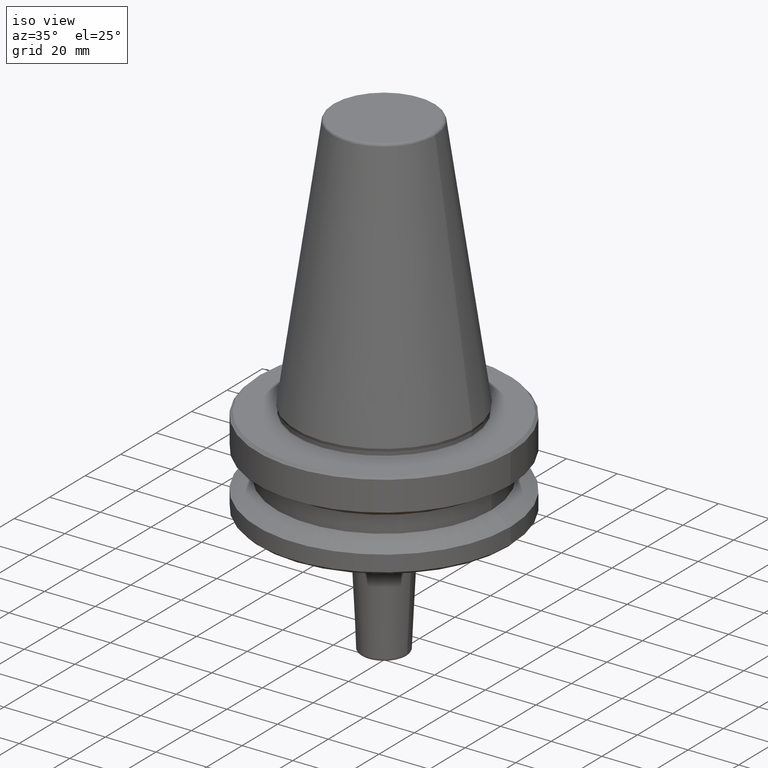
[diagram: clean part render]
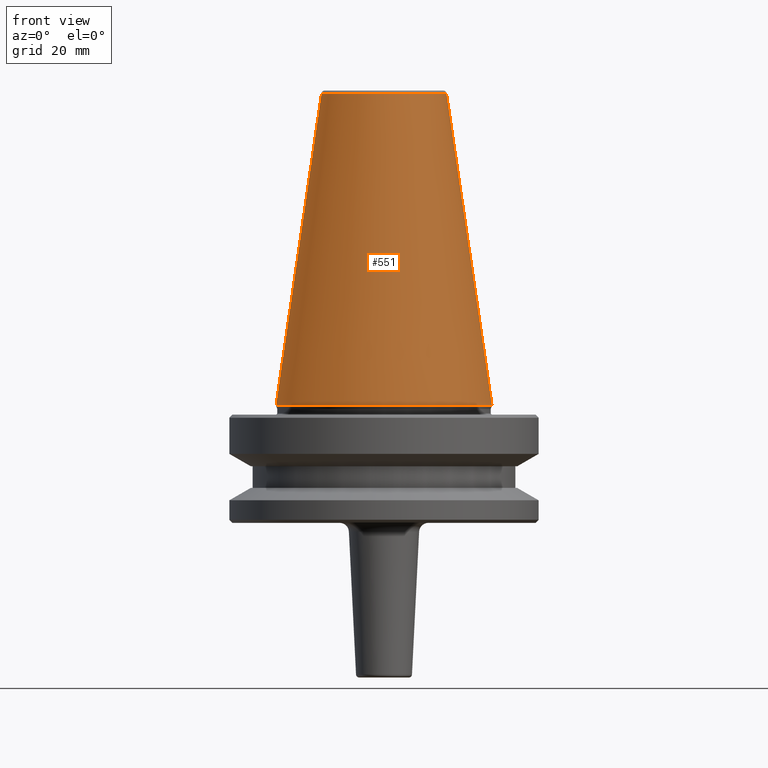
[diagram: tour spotlight — one face highlighted and labeled with its STEP entity id]
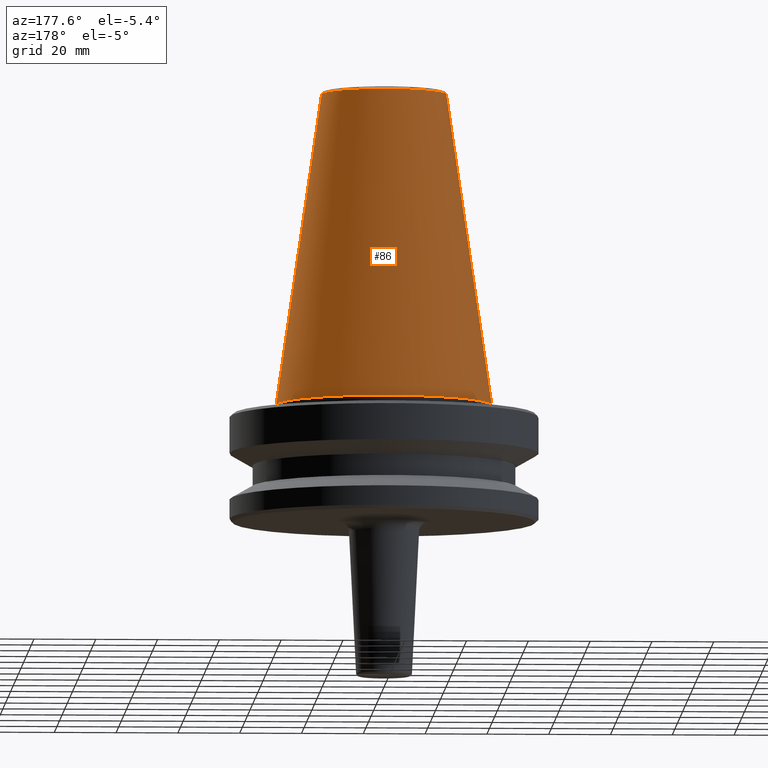
[diagram: tour spotlight — one face highlighted and labeled with its STEP entity id]
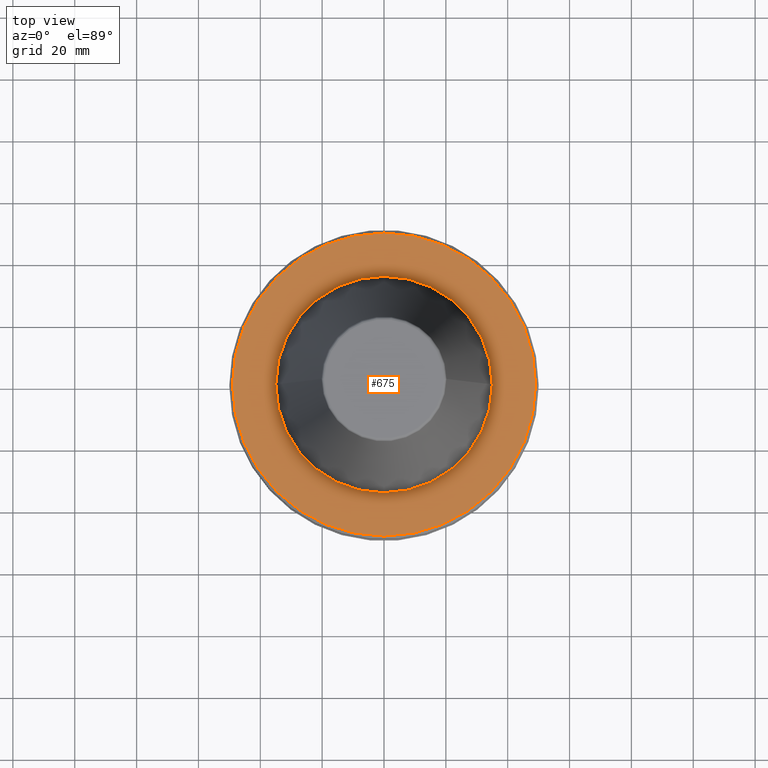
[diagram: tour spotlight — one face highlighted and labeled with its STEP entity id]
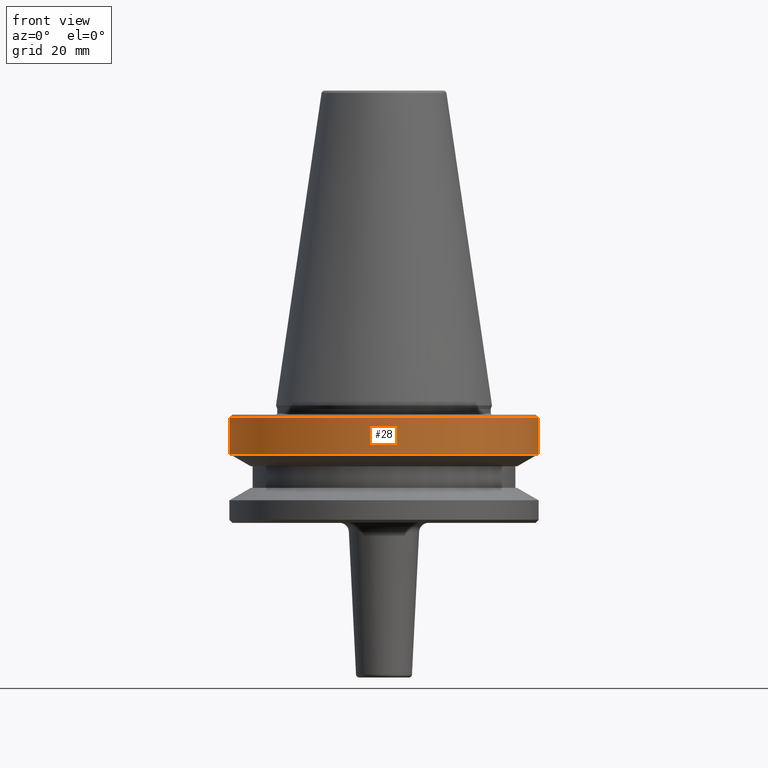
[diagram: tour spotlight — one face highlighted and labeled with its STEP entity id]
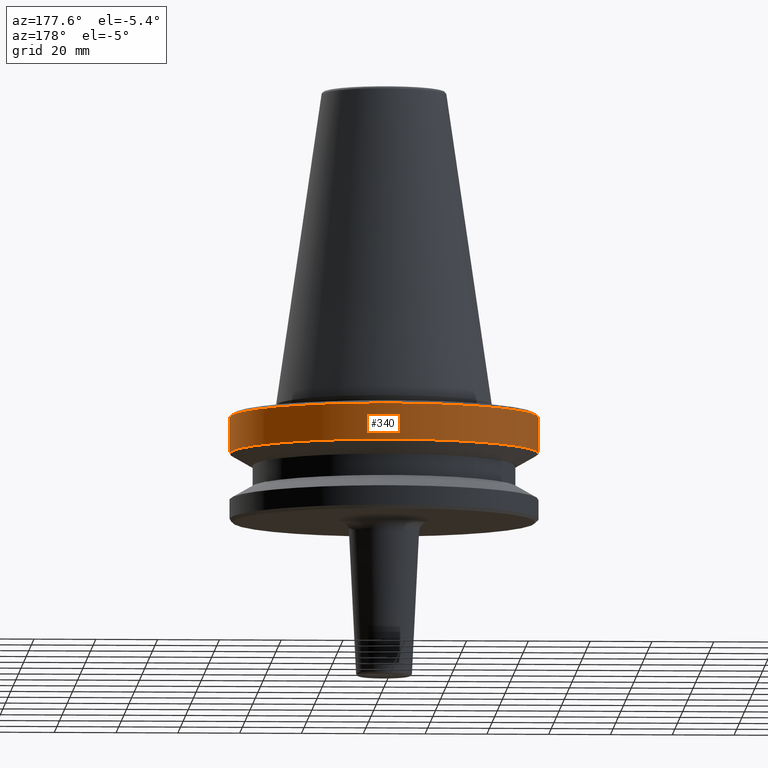
[diagram: tour spotlight — one face highlighted and labeled with its STEP entity id]
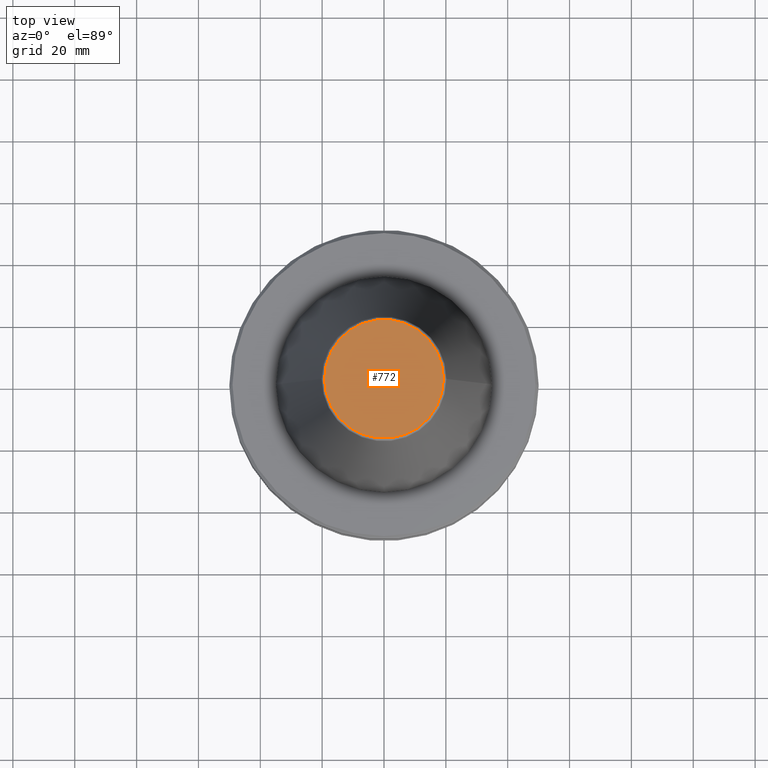
[diagram: tour spotlight — one face highlighted and labeled with its STEP entity id]
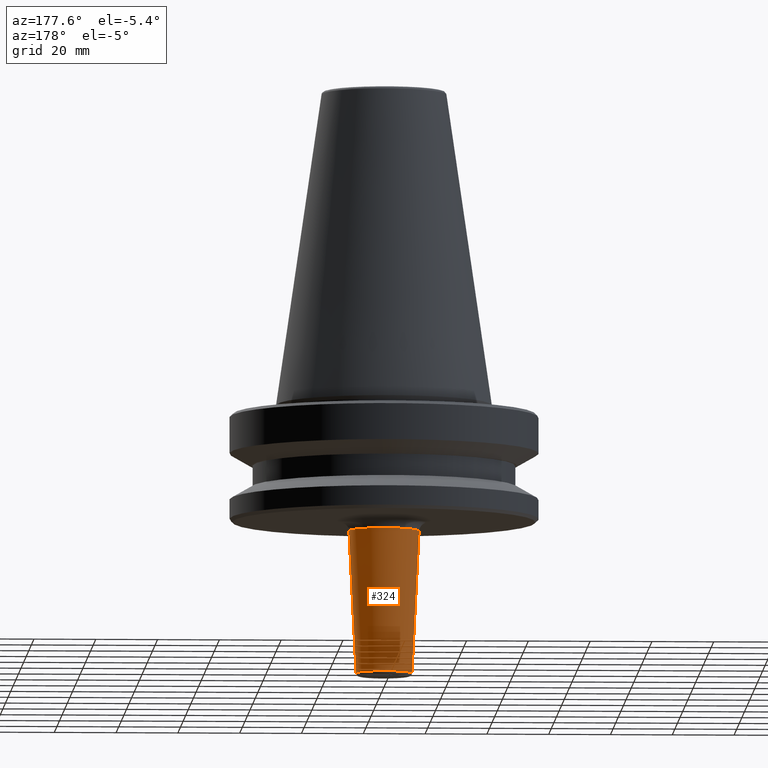
[diagram: tour spotlight — one face highlighted and labeled with its STEP entity id]
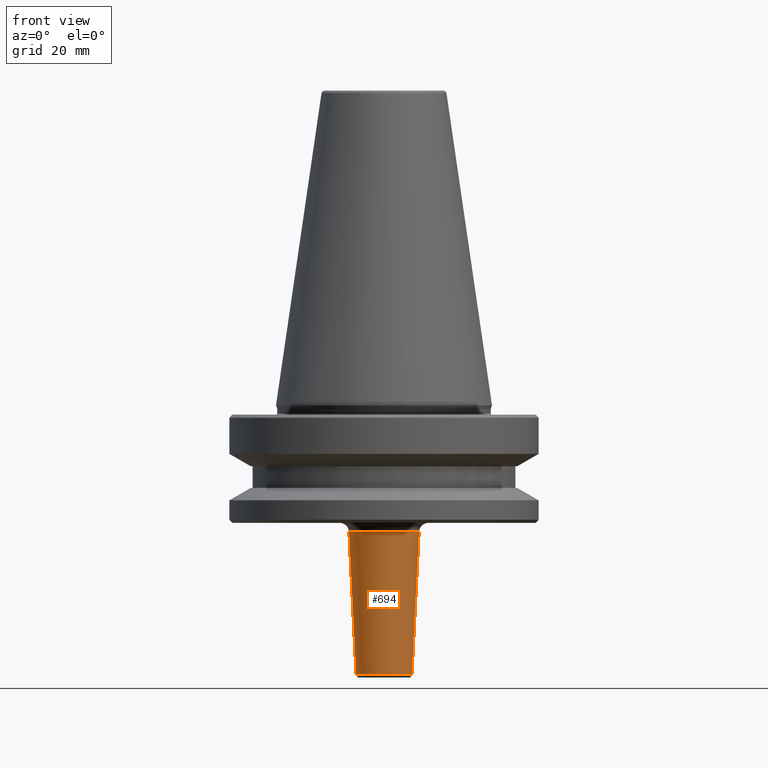
[diagram: tour spotlight — one face highlighted and labeled with its STEP entity id]
A machine part: a face-by-face anatomy tour. The part has 36 B-rep faces; the first image is the clean iso view, then the 8 largest visible faces are spotlighted one at a time (largest first), each with its STEP entity span.

Face 1 — front view, entity #551. In plain terms, the highlighted conical surface has half-angle 8.297 deg.
Definition (entity closure, byte-faithful):
#29 = ORIENTED_EDGE ( 'NONE', *, *, #854, .F. ) ;
#44 = DIRECTION ( 'NONE',  ( 0.1443082272673000800, 1.767266086135278300E-017, -0.9895327864921754600 ) ) ;
#54 = VERTEX_POINT ( 'NONE', #909 ) ;
#62 = CARTESIAN_POINT ( 'NONE',  ( -34.92499999999999700, 0.0000000000000000000, 0.0000000000000000000 ) ) ;
#113 = VERTEX_POINT ( 'NONE', #386 ) ;
#149 = FACE_OUTER_BOUND ( 'NONE', #344, .T. ) ;
#173 = CIRCLE ( 'NONE', #601, 20.20381605152244500 ) ;
#256 = DIRECTION ( 'NONE',  ( -0.0000000000000000000, -0.0000000000000000000, 1.000000000000000000 ) ) ;
#262 = VERTEX_POINT ( 'NONE', #820 ) ;
#264 = EDGE_CURVE ( 'NONE', #54, #458, #926, .T. ) ;
#308 = DIRECTION ( 'NONE',  ( 1.000000000000000000, 0.0000000000000000000, 0.0000000000000000000 ) ) ;
#339 = CARTESIAN_POINT ( 'NONE',  ( 34.92499999999999700, 4.277078946022130900E-015, 0.0000000000000000000 ) ) ;
#344 = EDGE_LOOP ( 'NONE', ( #608, #29, #667, #403 ) ) ;
#386 = CARTESIAN_POINT ( 'NONE',  ( -20.20381605152244500, 0.0000000000000000000, 100.9443082272672900 ) ) ;
#388 = VECTOR ( 'NONE', #44, 1000.000000000000000 ) ;
#389 = CONICAL_SURFACE ( 'NONE', #886, 34.92499999999999700, 0.1448138465474120600 ) ;
#403 = ORIENTED_EDGE ( 'NONE', *, *, #995, .T. ) ;
#458 = VERTEX_POINT ( 'NONE', #544 ) ;
#462 = VECTOR ( 'NONE', #502, 1000.000000000000000 ) ;
#502 = DIRECTION ( 'NONE',  ( -0.1443082272673000800, 0.0000000000000000000, -0.9895327864921754600 ) ) ;
#544 = CARTESIAN_POINT ( 'NONE',  ( 34.92499999999999700, 0.0000000000000000000, 0.0000000000000000000 ) ) ;
#549 = CARTESIAN_POINT ( 'NONE',  ( 0.0000000000000000000, 0.0000000000000000000, 0.0000000000000000000 ) ) ;
#551 = ADVANCED_FACE ( 'NONE', ( #149 ), #389, .T. ) ;
#558 = AXIS2_PLACEMENT_3D ( 'NONE', #935, #774, #308 ) ;
#601 = AXIS2_PLACEMENT_3D ( 'NONE', #729, #256, #805 ) ;
#608 = ORIENTED_EDGE ( 'NONE', *, *, #264, .F. ) ;
#613 = DIRECTION ( 'NONE',  ( -1.000000000000000000, 0.0000000000000000000, 0.0000000000000000000 ) ) ;
#667 = ORIENTED_EDGE ( 'NONE', *, *, #911, .T. ) ;
#729 = CARTESIAN_POINT ( 'NONE',  ( 0.0000000000000000000, 0.0000000000000000000, 100.9443082272672900 ) ) ;
#774 = DIRECTION ( 'NONE',  ( -0.0000000000000000000, -0.0000000000000000000, 1.000000000000000000 ) ) ;
#805 = DIRECTION ( 'NONE',  ( 1.000000000000000000, 0.0000000000000000000, 0.0000000000000000000 ) ) ;
#820 = CARTESIAN_POINT ( 'NONE',  ( -34.92499999999999700, 4.277078946022131700E-015, 0.0000000000000000000 ) ) ;
#835 = CIRCLE ( 'NONE', #558, 34.92499999999999700 ) ;
#854 = EDGE_CURVE ( 'NONE', #113, #54, #173, .T. ) ;
#871 = DIRECTION ( 'NONE',  ( 0.0000000000000000000, 0.0000000000000000000, -1.000000000000000000 ) ) ;
#886 = AXIS2_PLACEMENT_3D ( 'NONE', #549, #871, #613 ) ;
#909 = CARTESIAN_POINT ( 'NONE',  ( 20.20381605152244500, 3.375666405914009100E-015, 100.9443082272672900 ) ) ;
#911 = EDGE_CURVE ( 'NONE', #113, #262, #916, .T. ) ;
#916 = LINE ( 'NONE', #62, #462 ) ;
#926 = LINE ( 'NONE', #339, #388 ) ;
#935 = CARTESIAN_POINT ( 'NONE',  ( 0.0000000000000000000, 0.0000000000000000000, 0.0000000000000000000 ) ) ;
#995 = EDGE_CURVE ( 'NONE', #262, #458, #835, .T. ) ;

Face 2 — auxiliary view, entity #86. In plain terms, the highlighted conical surface has half-angle 8.297 deg.
Definition (entity closure, byte-faithful):
#13 = DIRECTION ( 'NONE',  ( 1.000000000000000000, 0.0000000000000000000, 0.0000000000000000000 ) ) ;
#39 = CARTESIAN_POINT ( 'NONE',  ( 0.0000000000000000000, 0.0000000000000000000, 0.0000000000000000000 ) ) ;
#44 = DIRECTION ( 'NONE',  ( 0.1443082272673000800, 1.767266086135278300E-017, -0.9895327864921754600 ) ) ;
#51 = CIRCLE ( 'NONE', #833, 20.20381605152244500 ) ;
#52 = CARTESIAN_POINT ( 'NONE',  ( 0.0000000000000000000, 0.0000000000000000000, 100.9443082272672900 ) ) ;
#54 = VERTEX_POINT ( 'NONE', #909 ) ;
#62 = CARTESIAN_POINT ( 'NONE',  ( -34.92499999999999700, 0.0000000000000000000, 0.0000000000000000000 ) ) ;
#82 = EDGE_CURVE ( 'NONE', #458, #262, #746, .T. ) ;
#86 = ADVANCED_FACE ( 'NONE', ( #904 ), #118, .T. ) ;
#113 = VERTEX_POINT ( 'NONE', #386 ) ;
#118 = CONICAL_SURFACE ( 'NONE', #614, 34.92499999999999700, 0.1448138465474120600 ) ;
#216 = DIRECTION ( 'NONE',  ( -0.0000000000000000000, -0.0000000000000000000, 1.000000000000000000 ) ) ;
#229 = AXIS2_PLACEMENT_3D ( 'NONE', #39, #216, #13 ) ;
#238 = ORIENTED_EDGE ( 'NONE', *, *, #292, .F. ) ;
#253 = ORIENTED_EDGE ( 'NONE', *, *, #911, .F. ) ;
#262 = VERTEX_POINT ( 'NONE', #820 ) ;
#264 = EDGE_CURVE ( 'NONE', #54, #458, #926, .T. ) ;
#292 = EDGE_CURVE ( 'NONE', #54, #113, #51, .T. ) ;
#301 = ORIENTED_EDGE ( 'NONE', *, *, #82, .T. ) ;
#339 = CARTESIAN_POINT ( 'NONE',  ( 34.92499999999999700, 4.277078946022130900E-015, 0.0000000000000000000 ) ) ;
#378 = EDGE_LOOP ( 'NONE', ( #238, #648, #301, #253 ) ) ;
#386 = CARTESIAN_POINT ( 'NONE',  ( -20.20381605152244500, 0.0000000000000000000, 100.9443082272672900 ) ) ;
#388 = VECTOR ( 'NONE', #44, 1000.000000000000000 ) ;
#423 = DIRECTION ( 'NONE',  ( -1.000000000000000000, 0.0000000000000000000, 0.0000000000000000000 ) ) ;
#458 = VERTEX_POINT ( 'NONE', #544 ) ;
#462 = VECTOR ( 'NONE', #502, 1000.000000000000000 ) ;
#502 = DIRECTION ( 'NONE',  ( -0.1443082272673000800, 0.0000000000000000000, -0.9895327864921754600 ) ) ;
#544 = CARTESIAN_POINT ( 'NONE',  ( 34.92499999999999700, 0.0000000000000000000, 0.0000000000000000000 ) ) ;
#614 = AXIS2_PLACEMENT_3D ( 'NONE', #734, #901, #423 ) ;
#628 = DIRECTION ( 'NONE',  ( -0.0000000000000000000, -0.0000000000000000000, 1.000000000000000000 ) ) ;
#648 = ORIENTED_EDGE ( 'NONE', *, *, #264, .T. ) ;
#734 = CARTESIAN_POINT ( 'NONE',  ( 0.0000000000000000000, 0.0000000000000000000, 0.0000000000000000000 ) ) ;
#746 = CIRCLE ( 'NONE', #229, 34.92499999999999700 ) ;
#820 = CARTESIAN_POINT ( 'NONE',  ( -34.92499999999999700, 4.277078946022131700E-015, 0.0000000000000000000 ) ) ;
#833 = AXIS2_PLACEMENT_3D ( 'NONE', #52, #628, #942 ) ;
#901 = DIRECTION ( 'NONE',  ( 0.0000000000000000000, 0.0000000000000000000, -1.000000000000000000 ) ) ;
#904 = FACE_OUTER_BOUND ( 'NONE', #378, .T. ) ;
#909 = CARTESIAN_POINT ( 'NONE',  ( 20.20381605152244500, 3.375666405914009100E-015, 100.9443082272672900 ) ) ;
#911 = EDGE_CURVE ( 'NONE', #113, #262, #916, .T. ) ;
#916 = LINE ( 'NONE', #62, #462 ) ;
#926 = LINE ( 'NONE', #339, #388 ) ;
#942 = DIRECTION ( 'NONE',  ( 1.000000000000000000, 0.0000000000000000000, 0.0000000000000000000 ) ) ;

Face 3 — top view, entity #675. In plain terms, the highlighted planar face has unit normal (0, 0, -1).
Definition (entity closure, byte-faithful):
#23 = AXIS2_PLACEMENT_3D ( 'NONE', #822, #981, #268 ) ;
#33 = EDGE_CURVE ( 'NONE', #759, #442, #955, .T. ) ;
#36 = DIRECTION ( 'NONE',  ( 1.000000000000000000, 0.0000000000000000000, 0.0000000000000000000 ) ) ;
#56 = CIRCLE ( 'NONE', #290, 49.00000000000000000 ) ;
#58 = VERTEX_POINT ( 'NONE', #662 ) ;
#128 = AXIS2_PLACEMENT_3D ( 'NONE', #156, #753, #36 ) ;
#131 = ORIENTED_EDGE ( 'NONE', *, *, #953, .F. ) ;
#156 = CARTESIAN_POINT ( 'NONE',  ( 0.0000000000000000000, 0.0000000000000000000, -2.999999999999988900 ) ) ;
#172 = CARTESIAN_POINT ( 'NONE',  ( 0.0000000000000000000, 0.0000000000000000000, -2.999999999999988900 ) ) ;
#223 = ORIENTED_EDGE ( 'NONE', *, *, #623, .F. ) ;
#225 = CARTESIAN_POINT ( 'NONE',  ( 49.00000000000000000, 6.062001655779398500E-015, -2.999999999999988900 ) ) ;
#231 = AXIS2_PLACEMENT_3D ( 'NONE', #571, #899, #840 ) ;
#248 = CARTESIAN_POINT ( 'NONE',  ( 0.0000000000000000000, 0.0000000000000000000, -2.999999999999988900 ) ) ;
#258 = CIRCLE ( 'NONE', #304, 35.00000000000000000 ) ;
#268 = DIRECTION ( 'NONE',  ( 1.000000000000000000, 0.0000000000000000000, 0.0000000000000000000 ) ) ;
#290 = AXIS2_PLACEMENT_3D ( 'NONE', #248, #795, #332 ) ;
#304 = AXIS2_PLACEMENT_3D ( 'NONE', #172, #802, #889 ) ;
#332 = DIRECTION ( 'NONE',  ( 1.000000000000000000, 0.0000000000000000000, 0.0000000000000000000 ) ) ;
#400 = VERTEX_POINT ( 'NONE', #449 ) ;
#416 = FACE_BOUND ( 'NONE', #469, .T. ) ;
#442 = VERTEX_POINT ( 'NONE', #225 ) ;
#449 = CARTESIAN_POINT ( 'NONE',  ( -35.00000000000000000, 4.286263797015737300E-015, -2.999999999999995600 ) ) ;
#469 = EDGE_LOOP ( 'NONE', ( #131, #223 ) ) ;
#482 = ORIENTED_EDGE ( 'NONE', *, *, #33, .T. ) ;
#571 = CARTESIAN_POINT ( 'NONE',  ( 0.0000000000000000000, 35.00000000000000000, -3.000000000000002700 ) ) ;
#623 = EDGE_CURVE ( 'NONE', #400, #58, #749, .T. ) ;
#662 = CARTESIAN_POINT ( 'NONE',  ( 35.00000000000000000, 0.0000000000000000000, -2.999999999999995600 ) ) ;
#675 = ADVANCED_FACE ( 'NONE', ( #416, #890 ), #755, .F. ) ;
#749 = CIRCLE ( 'NONE', #128, 35.00000000000000000 ) ;
#751 = EDGE_LOOP ( 'NONE', ( #482, #913 ) ) ;
#753 = DIRECTION ( 'NONE',  ( -0.0000000000000000000, -0.0000000000000000000, 1.000000000000000000 ) ) ;
#755 = PLANE ( 'NONE',  #231 ) ;
#759 = VERTEX_POINT ( 'NONE', #961 ) ;
#795 = DIRECTION ( 'NONE',  ( -0.0000000000000000000, -0.0000000000000000000, 1.000000000000000000 ) ) ;
#802 = DIRECTION ( 'NONE',  ( -0.0000000000000000000, -0.0000000000000000000, 1.000000000000000000 ) ) ;
#822 = CARTESIAN_POINT ( 'NONE',  ( 0.0000000000000000000, 0.0000000000000000000, -2.999999999999988900 ) ) ;
#840 = DIRECTION ( 'NONE',  ( -1.000000000000000000, 0.0000000000000000000, -0.0000000000000000000 ) ) ;
#889 = DIRECTION ( 'NONE',  ( 1.000000000000000000, 0.0000000000000000000, 0.0000000000000000000 ) ) ;
#890 = FACE_OUTER_BOUND ( 'NONE', #751, .T. ) ;
#899 = DIRECTION ( 'NONE',  ( 0.0000000000000000000, 0.0000000000000000000, -1.000000000000000000 ) ) ;
#913 = ORIENTED_EDGE ( 'NONE', *, *, #951, .T. ) ;
#951 = EDGE_CURVE ( 'NONE', #442, #759, #56, .T. ) ;
#953 = EDGE_CURVE ( 'NONE', #58, #400, #258, .T. ) ;
#955 = CIRCLE ( 'NONE', #23, 49.00000000000000000 ) ;
#961 = CARTESIAN_POINT ( 'NONE',  ( -49.00000000000000000, 0.0000000000000000000, -2.999999999999988900 ) ) ;
#981 = DIRECTION ( 'NONE',  ( -0.0000000000000000000, -0.0000000000000000000, 1.000000000000000000 ) ) ;

Face 4 — front view, entity #28. In plain terms, the highlighted cylindrical surface (partial cylindrical patch) has radius 50 mm, axis along (-0, -0, 1).
Definition (entity closure, byte-faithful):
#11 = VECTOR ( 'NONE', #391, 1000.000000000000000 ) ;
#28 = ADVANCED_FACE ( 'NONE', ( #594 ), #794, .T. ) ;
#42 = CARTESIAN_POINT ( 'NONE',  ( 0.0000000000000000000, 0.0000000000000000000, -3.999999999999989800 ) ) ;
#111 = ORIENTED_EDGE ( 'NONE', *, *, #866, .F. ) ;
#121 = CARTESIAN_POINT ( 'NONE',  ( -50.00000000000000000, 6.123233995736766100E-015, 124.5046326327850600 ) ) ;
#134 = DIRECTION ( 'NONE',  ( 1.000000000000000000, 0.0000000000000000000, 0.0000000000000000000 ) ) ;
#136 = VECTOR ( 'NONE', #590, 1000.000000000000000 ) ;
#142 = EDGE_LOOP ( 'NONE', ( #359, #710, #221, #111 ) ) ;
#193 = AXIS2_PLACEMENT_3D ( 'NONE', #661, #809, #887 ) ;
#221 = ORIENTED_EDGE ( 'NONE', *, *, #566, .T. ) ;
#224 = AXIS2_PLACEMENT_3D ( 'NONE', #966, #649, #688 ) ;
#275 = CARTESIAN_POINT ( 'NONE',  ( -50.00000000000000000, 6.123233995736766100E-015, -3.999999999999989800 ) ) ;
#285 = VERTEX_POINT ( 'NONE', #756 ) ;
#359 = ORIENTED_EDGE ( 'NONE', *, *, #872, .F. ) ;
#384 = CIRCLE ( 'NONE', #224, 50.00000000000000000 ) ;
#391 = DIRECTION ( 'NONE',  ( -0.0000000000000000000, -0.0000000000000000000, 1.000000000000000000 ) ) ;
#494 = VERTEX_POINT ( 'NONE', #685 ) ;
#513 = CARTESIAN_POINT ( 'NONE',  ( 50.00000000000000000, 0.0000000000000000000, 124.5046326327850600 ) ) ;
#526 = AXIS2_PLACEMENT_3D ( 'NONE', #42, #979, #134 ) ;
#541 = LINE ( 'NONE', #121, #136 ) ;
#566 = EDGE_CURVE ( 'NONE', #494, #285, #780, .T. ) ;
#568 = VERTEX_POINT ( 'NONE', #952 ) ;
#590 = DIRECTION ( 'NONE',  ( -0.0000000000000000000, -0.0000000000000000000, 1.000000000000000000 ) ) ;
#594 = FACE_OUTER_BOUND ( 'NONE', #142, .T. ) ;
#649 = DIRECTION ( 'NONE',  ( -0.0000000000000000000, -0.0000000000000000000, 1.000000000000000000 ) ) ;
#661 = CARTESIAN_POINT ( 'NONE',  ( 0.0000000000000000000, 0.0000000000000000000, 124.5046326327850600 ) ) ;
#685 = CARTESIAN_POINT ( 'NONE',  ( 50.00000000000000000, 0.0000000000000000000, -15.70022000322675400 ) ) ;
#688 = DIRECTION ( 'NONE',  ( 1.000000000000000000, 0.0000000000000000000, 0.0000000000000000000 ) ) ;
#691 = EDGE_CURVE ( 'NONE', #568, #494, #384, .T. ) ;
#710 = ORIENTED_EDGE ( 'NONE', *, *, #691, .T. ) ;
#756 = CARTESIAN_POINT ( 'NONE',  ( 50.00000000000000000, 0.0000000000000000000, -3.999999999999989800 ) ) ;
#773 = CIRCLE ( 'NONE', #526, 50.00000000000000000 ) ;
#780 = LINE ( 'NONE', #513, #11 ) ;
#794 = CYLINDRICAL_SURFACE ( 'NONE', #193, 50.00000000000000000 ) ;
#809 = DIRECTION ( 'NONE',  ( -0.0000000000000000000, -0.0000000000000000000, 1.000000000000000000 ) ) ;
#866 = EDGE_CURVE ( 'NONE', #910, #285, #773, .T. ) ;
#872 = EDGE_CURVE ( 'NONE', #568, #910, #541, .T. ) ;
#887 = DIRECTION ( 'NONE',  ( 1.000000000000000000, 0.0000000000000000000, 0.0000000000000000000 ) ) ;
#910 = VERTEX_POINT ( 'NONE', #275 ) ;
#952 = CARTESIAN_POINT ( 'NONE',  ( -50.00000000000000000, 6.123233995736766900E-015, -15.70022000322675400 ) ) ;
#966 = CARTESIAN_POINT ( 'NONE',  ( 0.0000000000000000000, 0.0000000000000000000, -15.70022000322675400 ) ) ;
#979 = DIRECTION ( 'NONE',  ( -0.0000000000000000000, -0.0000000000000000000, 1.000000000000000000 ) ) ;

Face 5 — auxiliary view, entity #340. In plain terms, the highlighted cylindrical surface (partial cylindrical patch) has radius 50 mm, axis along (-0, -0, 1).
Definition (entity closure, byte-faithful):
#11 = VECTOR ( 'NONE', #391, 1000.000000000000000 ) ;
#19 = CARTESIAN_POINT ( 'NONE',  ( 0.0000000000000000000, 0.0000000000000000000, -15.70022000322675400 ) ) ;
#20 = CARTESIAN_POINT ( 'NONE',  ( 0.0000000000000000000, 0.0000000000000000000, 124.5046326327850600 ) ) ;
#121 = CARTESIAN_POINT ( 'NONE',  ( -50.00000000000000000, 6.123233995736766100E-015, 124.5046326327850600 ) ) ;
#136 = VECTOR ( 'NONE', #590, 1000.000000000000000 ) ;
#141 = EDGE_LOOP ( 'NONE', ( #974, #831, #461, #634 ) ) ;
#275 = CARTESIAN_POINT ( 'NONE',  ( -50.00000000000000000, 6.123233995736766100E-015, -3.999999999999989800 ) ) ;
#285 = VERTEX_POINT ( 'NONE', #756 ) ;
#340 = ADVANCED_FACE ( 'NONE', ( #787 ), #947, .T. ) ;
#391 = DIRECTION ( 'NONE',  ( -0.0000000000000000000, -0.0000000000000000000, 1.000000000000000000 ) ) ;
#438 = CARTESIAN_POINT ( 'NONE',  ( 0.0000000000000000000, 0.0000000000000000000, -3.999999999999989800 ) ) ;
#461 = ORIENTED_EDGE ( 'NONE', *, *, #790, .F. ) ;
#476 = AXIS2_PLACEMENT_3D ( 'NONE', #438, #914, #602 ) ;
#489 = AXIS2_PLACEMENT_3D ( 'NONE', #19, #553, #789 ) ;
#494 = VERTEX_POINT ( 'NONE', #685 ) ;
#510 = AXIS2_PLACEMENT_3D ( 'NONE', #20, #633, #921 ) ;
#513 = CARTESIAN_POINT ( 'NONE',  ( 50.00000000000000000, 0.0000000000000000000, 124.5046326327850600 ) ) ;
#541 = LINE ( 'NONE', #121, #136 ) ;
#553 = DIRECTION ( 'NONE',  ( -0.0000000000000000000, -0.0000000000000000000, 1.000000000000000000 ) ) ;
#566 = EDGE_CURVE ( 'NONE', #494, #285, #780, .T. ) ;
#568 = VERTEX_POINT ( 'NONE', #952 ) ;
#590 = DIRECTION ( 'NONE',  ( -0.0000000000000000000, -0.0000000000000000000, 1.000000000000000000 ) ) ;
#602 = DIRECTION ( 'NONE',  ( 1.000000000000000000, 0.0000000000000000000, 0.0000000000000000000 ) ) ;
#633 = DIRECTION ( 'NONE',  ( -0.0000000000000000000, -0.0000000000000000000, 1.000000000000000000 ) ) ;
#634 = ORIENTED_EDGE ( 'NONE', *, *, #566, .F. ) ;
#640 = CIRCLE ( 'NONE', #476, 50.00000000000000000 ) ;
#651 = CIRCLE ( 'NONE', #489, 50.00000000000000000 ) ;
#685 = CARTESIAN_POINT ( 'NONE',  ( 50.00000000000000000, 0.0000000000000000000, -15.70022000322675400 ) ) ;
#756 = CARTESIAN_POINT ( 'NONE',  ( 50.00000000000000000, 0.0000000000000000000, -3.999999999999989800 ) ) ;
#780 = LINE ( 'NONE', #513, #11 ) ;
#787 = FACE_OUTER_BOUND ( 'NONE', #141, .T. ) ;
#789 = DIRECTION ( 'NONE',  ( 1.000000000000000000, 0.0000000000000000000, 0.0000000000000000000 ) ) ;
#790 = EDGE_CURVE ( 'NONE', #285, #910, #640, .T. ) ;
#831 = ORIENTED_EDGE ( 'NONE', *, *, #872, .T. ) ;
#872 = EDGE_CURVE ( 'NONE', #568, #910, #541, .T. ) ;
#910 = VERTEX_POINT ( 'NONE', #275 ) ;
#914 = DIRECTION ( 'NONE',  ( -0.0000000000000000000, -0.0000000000000000000, 1.000000000000000000 ) ) ;
#921 = DIRECTION ( 'NONE',  ( 1.000000000000000000, 0.0000000000000000000, 0.0000000000000000000 ) ) ;
#947 = CYLINDRICAL_SURFACE ( 'NONE', #510, 50.00000000000000000 ) ;
#952 = CARTESIAN_POINT ( 'NONE',  ( -50.00000000000000000, 6.123233995736766900E-015, -15.70022000322675400 ) ) ;
#958 = EDGE_CURVE ( 'NONE', #494, #568, #651, .T. ) ;
#974 = ORIENTED_EDGE ( 'NONE', *, *, #958, .T. ) ;

Face 6 — top view, entity #772. In plain terms, the highlighted planar face has unit normal (0, 0, -1).
Definition (entity closure, byte-faithful):
#3 = ORIENTED_EDGE ( 'NONE', *, *, #559, .T. ) ;
#5 = CIRCLE ( 'NONE', #812, 19.21428326503027200 ) ;
#81 = EDGE_LOOP ( 'NONE', ( #165, #3 ) ) ;
#92 = DIRECTION ( 'NONE',  ( -1.000000000000000000, 0.0000000000000000000, -0.0000000000000000000 ) ) ;
#165 = ORIENTED_EDGE ( 'NONE', *, *, #844, .T. ) ;
#206 = DIRECTION ( 'NONE',  ( -0.0000000000000000000, -0.0000000000000000000, 1.000000000000000000 ) ) ;
#280 = CARTESIAN_POINT ( 'NONE',  ( 0.0000000000000000000, 0.0000000000000000000, 101.7999999999999800 ) ) ;
#281 = FACE_OUTER_BOUND ( 'NONE', #81, .T. ) ;
#328 = CIRCLE ( 'NONE', #859, 19.21428326503027200 ) ;
#350 = DIRECTION ( 'NONE',  ( -0.0000000000000000000, -0.0000000000000000000, 1.000000000000000000 ) ) ;
#362 = DIRECTION ( 'NONE',  ( 1.000000000000000000, 0.0000000000000000000, 0.0000000000000000000 ) ) ;
#387 = VERTEX_POINT ( 'NONE', #642 ) ;
#410 = CARTESIAN_POINT ( 'NONE',  ( 0.0000000000000000000, 0.0000000000000000000, 101.8000000000000000 ) ) ;
#487 = CARTESIAN_POINT ( 'NONE',  ( 0.0000000000000000000, 0.0000000000000000000, 101.7999999999999800 ) ) ;
#497 = AXIS2_PLACEMENT_3D ( 'NONE', #410, #563, #92 ) ;
#559 = EDGE_CURVE ( 'NONE', #387, #841, #328, .T. ) ;
#563 = DIRECTION ( 'NONE',  ( 0.0000000000000000000, 0.0000000000000000000, -1.000000000000000000 ) ) ;
#642 = CARTESIAN_POINT ( 'NONE',  ( -19.21428326503027200, 2.413662457824437800E-015, 101.7999999999999800 ) ) ;
#772 = ADVANCED_FACE ( 'NONE', ( #281 ), #885, .F. ) ;
#812 = AXIS2_PLACEMENT_3D ( 'NONE', #487, #350, #362 ) ;
#841 = VERTEX_POINT ( 'NONE', #975 ) ;
#844 = EDGE_CURVE ( 'NONE', #841, #387, #5, .T. ) ;
#859 = AXIS2_PLACEMENT_3D ( 'NONE', #280, #206, #918 ) ;
#885 = PLANE ( 'NONE',  #497 ) ;
#918 = DIRECTION ( 'NONE',  ( 1.000000000000000000, 0.0000000000000000000, 0.0000000000000000000 ) ) ;
#975 = CARTESIAN_POINT ( 'NONE',  ( 19.21428326503027200, 0.0000000000000000000, 101.7999999999999800 ) ) ;

Face 7 — auxiliary view, entity #324. In plain terms, the highlighted conical surface has half-angle 2.862 deg.
Definition (entity closure, byte-faithful):
#6 = VERTEX_POINT ( 'NONE', #478 ) ;
#14 = LINE ( 'NONE', #813, #77 ) ;
#77 = VECTOR ( 'NONE', #816, 1000.000000000000200 ) ;
#100 = CARTESIAN_POINT ( 'NONE',  ( 0.0000000000000000000, 0.0000000000000000000, -87.04993761694393600 ) ) ;
#146 = ORIENTED_EDGE ( 'NONE', *, *, #964, .T. ) ;
#167 = DIRECTION ( 'NONE',  ( 0.0000000000000000000, 0.0000000000000000000, -1.000000000000000000 ) ) ;
#174 = DIRECTION ( 'NONE',  ( 1.000000000000000000, 0.0000000000000000000, 0.0000000000000000000 ) ) ;
#180 = ORIENTED_EDGE ( 'NONE', *, *, #777, .T. ) ;
#270 = AXIS2_PLACEMENT_3D ( 'NONE', #638, #167, #717 ) ;
#287 = VERTEX_POINT ( 'NONE', #289 ) ;
#289 = CARTESIAN_POINT ( 'NONE',  ( 9.047503119152851900, 0.0000000000000000000, -87.04993761694393600 ) ) ;
#315 = CARTESIAN_POINT ( 'NONE',  ( 11.50000000000003600, 0.0000000000000000000, -38.00000000000000700 ) ) ;
#324 = ADVANCED_FACE ( 'NONE', ( #603 ), #1003, .T. ) ;
#335 = ORIENTED_EDGE ( 'NONE', *, *, #582, .F. ) ;
#336 = CARTESIAN_POINT ( 'NONE',  ( 11.35749064254162000, 0.0000000000000000000, -40.85018714916832700 ) ) ;
#373 = CIRCLE ( 'NONE', #426, 9.047503119152851900 ) ;
#377 = CARTESIAN_POINT ( 'NONE',  ( 0.0000000000000000000, 0.0000000000000000000, -38.00000000000000700 ) ) ;
#426 = AXIS2_PLACEMENT_3D ( 'NONE', #100, #645, #174 ) ;
#440 = CIRCLE ( 'NONE', #270, 11.35749064254162000 ) ;
#478 = CARTESIAN_POINT ( 'NONE',  ( -11.35749064254162000, 1.390891456173461100E-015, -40.85018714916832700 ) ) ;
#546 = LINE ( 'NONE', #315, #803 ) ;
#564 = VERTEX_POINT ( 'NONE', #605 ) ;
#582 = EDGE_CURVE ( 'NONE', #287, #720, #546, .T. ) ;
#603 = FACE_OUTER_BOUND ( 'NONE', #870, .T. ) ;
#605 = CARTESIAN_POINT ( 'NONE',  ( -9.047503119152851900, 1.107999573514623600E-015, -87.04993761694393600 ) ) ;
#606 = DIRECTION ( 'NONE',  ( 0.04993761694389197600, 0.0000000000000000000, 0.9987523388778446500 ) ) ;
#638 = CARTESIAN_POINT ( 'NONE',  ( 0.0000000000000000000, 0.0000000000000000000, -40.85018714916832700 ) ) ;
#645 = DIRECTION ( 'NONE',  ( -0.0000000000000000000, -0.0000000000000000000, 1.000000000000000000 ) ) ;
#670 = EDGE_CURVE ( 'NONE', #564, #6, #14, .T. ) ;
#703 = DIRECTION ( 'NONE',  ( 1.000000000000000000, 0.0000000000000000000, 0.0000000000000000000 ) ) ;
#717 = DIRECTION ( 'NONE',  ( -1.000000000000000000, 0.0000000000000000000, 0.0000000000000000000 ) ) ;
#720 = VERTEX_POINT ( 'NONE', #336 ) ;
#771 = DIRECTION ( 'NONE',  ( -0.0000000000000000000, -0.0000000000000000000, 1.000000000000000000 ) ) ;
#777 = EDGE_CURVE ( 'NONE', #287, #564, #373, .T. ) ;
#788 = ORIENTED_EDGE ( 'NONE', *, *, #670, .T. ) ;
#803 = VECTOR ( 'NONE', #606, 1000.000000000000200 ) ;
#813 = CARTESIAN_POINT ( 'NONE',  ( -11.50000000000003600, 1.408343819019460500E-015, -38.00000000000000700 ) ) ;
#816 = DIRECTION ( 'NONE',  ( -0.04993761694389197600, 6.115594274738393900E-018, 0.9987523388778446500 ) ) ;
#842 = AXIS2_PLACEMENT_3D ( 'NONE', #377, #771, #703 ) ;
#870 = EDGE_LOOP ( 'NONE', ( #180, #788, #146, #335 ) ) ;
#964 = EDGE_CURVE ( 'NONE', #6, #720, #440, .T. ) ;
#1003 = CONICAL_SURFACE ( 'NONE', #842, 11.50000000000003600, 0.04995839572194250800 ) ;

Face 8 — front view, entity #694. In plain terms, the highlighted conical surface has half-angle 2.862 deg.
Definition (entity closure, byte-faithful):
#6 = VERTEX_POINT ( 'NONE', #478 ) ;
#14 = LINE ( 'NONE', #813, #77 ) ;
#69 = DIRECTION ( 'NONE',  ( 1.000000000000000000, 0.0000000000000000000, 0.0000000000000000000 ) ) ;
#77 = VECTOR ( 'NONE', #816, 1000.000000000000200 ) ;
#143 = CONICAL_SURFACE ( 'NONE', #157, 11.50000000000003600, 0.04995839572194250800 ) ;
#157 = AXIS2_PLACEMENT_3D ( 'NONE', #184, #852, #69 ) ;
#184 = CARTESIAN_POINT ( 'NONE',  ( 0.0000000000000000000, 0.0000000000000000000, -38.00000000000000700 ) ) ;
#244 = ORIENTED_EDGE ( 'NONE', *, *, #814, .T. ) ;
#259 = CARTESIAN_POINT ( 'NONE',  ( 0.0000000000000000000, 0.0000000000000000000, -87.04993761694393600 ) ) ;
#286 = DIRECTION ( 'NONE',  ( 0.0000000000000000000, 0.0000000000000000000, -1.000000000000000000 ) ) ;
#287 = VERTEX_POINT ( 'NONE', #289 ) ;
#289 = CARTESIAN_POINT ( 'NONE',  ( 9.047503119152851900, 0.0000000000000000000, -87.04993761694393600 ) ) ;
#315 = CARTESIAN_POINT ( 'NONE',  ( 11.50000000000003600, 0.0000000000000000000, -38.00000000000000700 ) ) ;
#327 = EDGE_CURVE ( 'NONE', #720, #6, #555, .T. ) ;
#336 = CARTESIAN_POINT ( 'NONE',  ( 11.35749064254162000, 0.0000000000000000000, -40.85018714916832700 ) ) ;
#363 = FACE_OUTER_BOUND ( 'NONE', #556, .T. ) ;
#443 = CARTESIAN_POINT ( 'NONE',  ( 0.0000000000000000000, 0.0000000000000000000, -40.85018714916832700 ) ) ;
#466 = ORIENTED_EDGE ( 'NONE', *, *, #327, .T. ) ;
#478 = CARTESIAN_POINT ( 'NONE',  ( -11.35749064254162000, 1.390891456173461100E-015, -40.85018714916832700 ) ) ;
#546 = LINE ( 'NONE', #315, #803 ) ;
#555 = CIRCLE ( 'NONE', #793, 11.35749064254162000 ) ;
#556 = EDGE_LOOP ( 'NONE', ( #888, #244, #643, #466 ) ) ;
#564 = VERTEX_POINT ( 'NONE', #605 ) ;
#575 = AXIS2_PLACEMENT_3D ( 'NONE', #259, #659, #585 ) ;
#582 = EDGE_CURVE ( 'NONE', #287, #720, #546, .T. ) ;
#585 = DIRECTION ( 'NONE',  ( 1.000000000000000000, 0.0000000000000000000, 0.0000000000000000000 ) ) ;
#605 = CARTESIAN_POINT ( 'NONE',  ( -9.047503119152851900, 1.107999573514623600E-015, -87.04993761694393600 ) ) ;
#606 = DIRECTION ( 'NONE',  ( 0.04993761694389197600, 0.0000000000000000000, 0.9987523388778446500 ) ) ;
#643 = ORIENTED_EDGE ( 'NONE', *, *, #582, .T. ) ;
#659 = DIRECTION ( 'NONE',  ( -0.0000000000000000000, -0.0000000000000000000, 1.000000000000000000 ) ) ;
#670 = EDGE_CURVE ( 'NONE', #564, #6, #14, .T. ) ;
#694 = ADVANCED_FACE ( 'NONE', ( #363 ), #143, .T. ) ;
#720 = VERTEX_POINT ( 'NONE', #336 ) ;
#793 = AXIS2_PLACEMENT_3D ( 'NONE', #443, #286, #836 ) ;
#803 = VECTOR ( 'NONE', #606, 1000.000000000000200 ) ;
#813 = CARTESIAN_POINT ( 'NONE',  ( -11.50000000000003600, 1.408343819019460500E-015, -38.00000000000000700 ) ) ;
#814 = EDGE_CURVE ( 'NONE', #564, #287, #851, .T. ) ;
#816 = DIRECTION ( 'NONE',  ( -0.04993761694389197600, 6.115594274738393900E-018, 0.9987523388778446500 ) ) ;
#836 = DIRECTION ( 'NONE',  ( -1.000000000000000000, 0.0000000000000000000, 0.0000000000000000000 ) ) ;
#851 = CIRCLE ( 'NONE', #575, 9.047503119152851900 ) ;
#852 = DIRECTION ( 'NONE',  ( -0.0000000000000000000, -0.0000000000000000000, 1.000000000000000000 ) ) ;
#888 = ORIENTED_EDGE ( 'NONE', *, *, #670, .F. ) ;